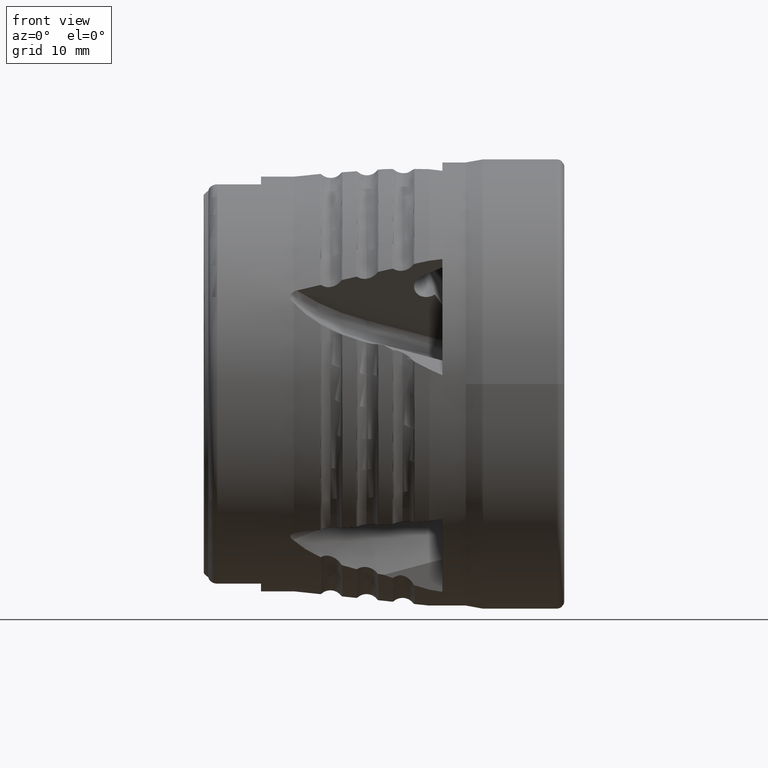
[diagram: clean part render]
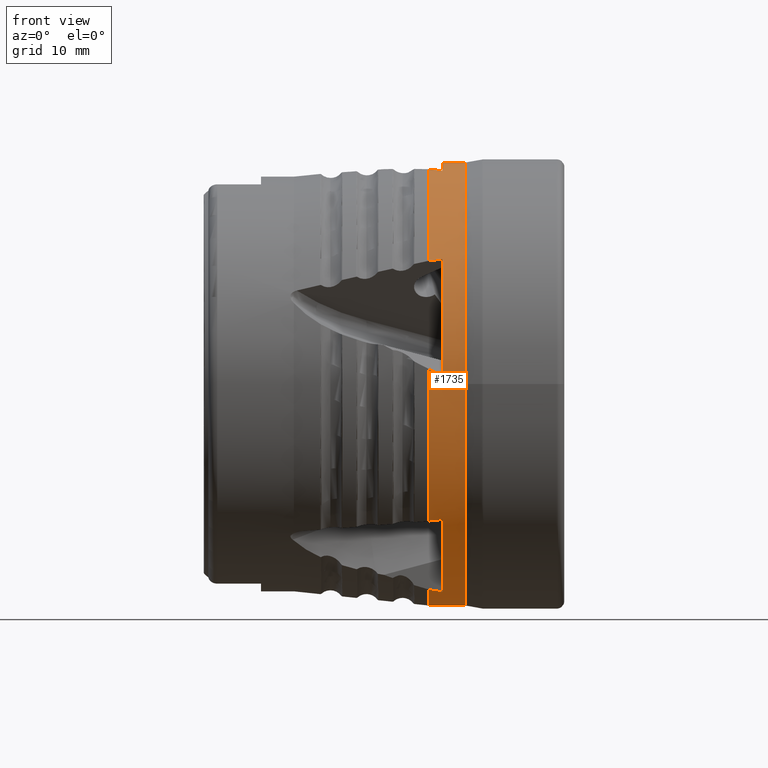
[diagram: same view with one face highlighted and labeled with its STEP entity id]
A machine part, front view. The second image highlights one B-rep face of the part: STEP entity #1735.
In plain terms, the highlighted cylindrical surface (partial cylindrical patch) has radius 24.575 mm, axis along (1, -0, -0).
Its self-contained STEP definition (entity closure, byte-faithful):
#640 = DIRECTION ( 'NONE',  ( 1.000000000000000000, -0.0000000000000000000, -0.0000000000000000000 ) ) ;
#641 = CARTESIAN_POINT ( 'NONE',  ( 0.0000000000000000000, 0.0000000000000000000, 0.0000000000000000000 ) ) ;
#642 = DIRECTION ( 'NONE',  ( 0.0000000000000000000, 0.0000000000000000000, -1.000000000000000000 ) ) ;
#1029 = CARTESIAN_POINT ( 'NONE',  ( -13.24999999999999800, 0.0000000000000000000, 0.0000000000000000000 ) ) ;
#1036 = DIRECTION ( 'NONE',  ( 1.000000000000000000, -0.0000000000000000000, -0.0000000000000000000 ) ) ;
#1037 = DIRECTION ( 'NONE',  ( 0.0000000000000000000, 0.0000000000000000000, -1.000000000000000000 ) ) ;
#1047 = CARTESIAN_POINT ( 'NONE',  ( 0.0000000000000000000, 0.0000000000000000000, -24.57499999999999900 ) ) ;
#1048 = DIRECTION ( 'NONE',  ( 1.000000000000000000, -0.0000000000000000000, -0.0000000000000000000 ) ) ;
#1049 = CARTESIAN_POINT ( 'NONE',  ( 0.0000000000000000000, 3.009569508904620300E-015, 24.57499999999999900 ) ) ;
#1050 = DIRECTION ( 'NONE',  ( 1.000000000000000000, -0.0000000000000000000, -0.0000000000000000000 ) ) ;
#1735 = ADVANCED_FACE ( 'NONE', ( #8166 ), #8165, .T. ) ;
#1851 =( BOUNDED_CURVE ( )  B_SPLINE_CURVE ( 3, ( #3162, #3172, #3173, #3174 ),
 .UNSPECIFIED., .F., .T. ) 
 B_SPLINE_CURVE_WITH_KNOTS ( ( 4, 4 ),
 ( 4.187632533671864700, 4.215138769280052600 ),
 .UNSPECIFIED. ) 
 CURVE ( )  GEOMETRIC_REPRESENTATION_ITEM ( )  RATIONAL_B_SPLINE_CURVE ( ( 1.000000000000000000, 0.9999369515773565100, 0.9999369515773565100, 1.000000000000000000 ) ) 
 REPRESENTATION_ITEM ( '' )  );
#1852 =( BOUNDED_CURVE ( )  B_SPLINE_CURVE ( 3, ( #3170, #3179, #3180, #3181 ),
 .UNSPECIFIED., .F., .F. ) 
 B_SPLINE_CURVE_WITH_KNOTS ( ( 4, 4 ),
 ( 4.187632533671864700, 4.215138769280052600 ),
 .UNSPECIFIED. ) 
 CURVE ( )  GEOMETRIC_REPRESENTATION_ITEM ( )  RATIONAL_B_SPLINE_CURVE ( ( 1.000000000000000000, 0.9999369515773565100, 0.9999369515773565100, 1.000000000000000000 ) ) 
 REPRESENTATION_ITEM ( '' )  );
#1853 =( BOUNDED_CURVE ( )  B_SPLINE_CURVE ( 3, ( #3182, #3186, #3187, #3188 ),
 .UNSPECIFIED., .F., .F. ) 
 B_SPLINE_CURVE_WITH_KNOTS ( ( 4, 4 ),
 ( 4.187632533671864700, 4.215138769280052600 ),
 .UNSPECIFIED. ) 
 CURVE ( )  GEOMETRIC_REPRESENTATION_ITEM ( )  RATIONAL_B_SPLINE_CURVE ( ( 1.000000000000000000, 0.9999369515773565100, 0.9999369515773565100, 1.000000000000000000 ) ) 
 REPRESENTATION_ITEM ( '' )  );
#1866 =( BOUNDED_CURVE ( )  B_SPLINE_CURVE ( 3, ( #3647, #3657, #3658, #3659 ),
 .UNSPECIFIED., .F., .T. ) 
 B_SPLINE_CURVE_WITH_KNOTS ( ( 4, 4 ),
 ( 1.914229563437308300, 1.923213844493647500 ),
 .UNSPECIFIED. ) 
 CURVE ( )  GEOMETRIC_REPRESENTATION_ITEM ( )  RATIONAL_B_SPLINE_CURVE ( ( 1.000000000000000000, 0.9999932735691362500, 0.9999932735691362500, 1.000000000000000000 ) ) 
 REPRESENTATION_ITEM ( '' )  );
#1871 =( BOUNDED_CURVE ( )  B_SPLINE_CURVE ( 3, ( #3751, #3761, #3762, #3763 ),
 .UNSPECIFIED., .F., .T. ) 
 B_SPLINE_CURVE_WITH_KNOTS ( ( 4, 4 ),
 ( 1.914229563437308300, 1.923213844493649100 ),
 .UNSPECIFIED. ) 
 CURVE ( )  GEOMETRIC_REPRESENTATION_ITEM ( )  RATIONAL_B_SPLINE_CURVE ( ( 1.000000000000000000, 0.9999932735691362500, 0.9999932735691362500, 1.000000000000000000 ) ) 
 REPRESENTATION_ITEM ( '' )  );
#1944 = AXIS2_PLACEMENT_3D ( 'NONE', #641, #640, #642 ) ;
#2036 = AXIS2_PLACEMENT_3D ( 'NONE', #1029, #1036, #1037 ) ;
#2146 = AXIS2_PLACEMENT_3D ( 'NONE', #5599, #5601, #5602 ) ;
#2200 = AXIS2_PLACEMENT_3D ( 'NONE', #3175, #3176, #3177 ) ;
#2201 = AXIS2_PLACEMENT_3D ( 'NONE', #3178, #3183, #3184 ) ;
#2203 = AXIS2_PLACEMENT_3D ( 'NONE', #3185, #3190, #3191 ) ;
#2204 = AXIS2_PLACEMENT_3D ( 'NONE', #3171, #3193, #3194 ) ;
#2206 = AXIS2_PLACEMENT_3D ( 'NONE', #3209, #3218, #3219 ) ;
#2210 = AXIS2_PLACEMENT_3D ( 'NONE', #3249, #3258, #3259 ) ;
#2352 = EDGE_CURVE ( 'NONE', #12111, #11997, #8302, .T. ) ;
#2355 = EDGE_CURVE ( 'NONE', #11997, #11940, #8301, .T. ) ;
#2356 = EDGE_CURVE ( 'NONE', #12002, #11519, #8304, .T. ) ;
#2673 = EDGE_CURVE ( 'NONE', #11519, #11520, #9944, .T. ) ;
#3162 = CARTESIAN_POINT ( 'NONE',  ( -13.24999999999999800, -9.142454703750031400, -22.81109701417010500 ) ) ;
#3170 = CARTESIAN_POINT ( 'NONE',  ( -13.24999999999999500, -24.51981633292933100, 1.645974483220622500 ) ) ;
#3171 = CARTESIAN_POINT ( 'NONE',  ( -11.77314234496912000, -2.256532460468214100E-015, 0.0000000000000000000 ) ) ;
#3172 = CARTESIAN_POINT ( 'NONE',  ( -12.76152579702873700, -8.933298973796633300, -22.89492449453811300 ) ) ;
#3173 = CARTESIAN_POINT ( 'NONE',  ( -12.26920887221289800, -8.723010171382972200, -22.97586759440841700 ) ) ;
#3174 = CARTESIAN_POINT ( 'NONE',  ( -11.77314234496911800, -8.511628071640904700, -23.05391100377666200 ) ) ;
#3175 = CARTESIAN_POINT ( 'NONE',  ( -9.178961462333511200, -1.936995458372529200E-015, 0.0000000000000000000 ) ) ;
#3176 = DIRECTION ( 'NONE',  ( 1.000000000000000000, 1.231745265854573400E-016, -0.0000000000000000000 ) ) ;
#3177 = DIRECTION ( 'NONE',  ( -1.411779024192722100E-016, 1.000000000000000000, 0.0000000000000000000 ) ) ;
#3178 = CARTESIAN_POINT ( 'NONE',  ( -11.77314234496912000, -2.256532460468214100E-015, 0.0000000000000000000 ) ) ;
#3179 = CARTESIAN_POINT ( 'NONE',  ( -12.76152579702874100, -24.53490832935143500, 1.421151447298632600 ) ) ;
#3180 = CARTESIAN_POINT ( 'NONE',  ( -12.26920887221290200, -24.54690697825963500, 1.196142118021905600 ) ) ;
#3181 = CARTESIAN_POINT ( 'NONE',  ( -11.77314234496911800, -24.55581001016624000, 0.9709890548403096200 ) ) ;
#3182 = CARTESIAN_POINT ( 'NONE',  ( -13.24999999999999800, -6.011625187904955100, 23.82836518941546400 ) ) ;
#3183 = DIRECTION ( 'NONE',  ( 1.000000000000000000, 1.231745265854573400E-016, -0.0000000000000000000 ) ) ;
#3184 = DIRECTION ( 'NONE',  ( -1.411779024192722100E-016, 1.000000000000000000, 0.0000000000000000000 ) ) ;
#3185 = CARTESIAN_POINT ( 'NONE',  ( -11.77314234496912000, -2.256532460468214100E-015, 0.0000000000000000000 ) ) ;
#3186 = CARTESIAN_POINT ( 'NONE',  ( -12.76152579702875800, -6.230108284605307700, 23.77324439212976900 ) ) ;
#3187 = CARTESIAN_POINT ( 'NONE',  ( -12.26920887221291800, -6.447812659863315000, 23.71512407872123200 ) ) ;
#3188 = CARTESIAN_POINT ( 'NONE',  ( -11.77314234496911800, -6.664697135926597400, 23.65401524237210400 ) ) ;
#3190 = DIRECTION ( 'NONE',  ( 1.000000000000000000, 1.231745265854573400E-016, -0.0000000000000000000 ) ) ;
#3191 = DIRECTION ( 'NONE',  ( -1.411779024192722100E-016, 1.000000000000000000, 0.0000000000000000000 ) ) ;
#3193 = DIRECTION ( 'NONE',  ( 1.000000000000000000, 1.231745265854573400E-016, -0.0000000000000000000 ) ) ;
#3194 = DIRECTION ( 'NONE',  ( -1.411779024192722100E-016, 1.000000000000000000, 0.0000000000000000000 ) ) ;
#3209 = CARTESIAN_POINT ( 'NONE',  ( -13.24999999999999800, 0.0000000000000000000, 0.0000000000000000000 ) ) ;
#3218 = DIRECTION ( 'NONE',  ( 1.000000000000000000, -0.0000000000000000000, -0.0000000000000000000 ) ) ;
#3219 = DIRECTION ( 'NONE',  ( 0.0000000000000000000, 0.0000000000000000000, -1.000000000000000000 ) ) ;
#3249 = CARTESIAN_POINT ( 'NONE',  ( -13.24999999999999800, 0.0000000000000000000, 0.0000000000000000000 ) ) ;
#3258 = DIRECTION ( 'NONE',  ( 1.000000000000000000, -0.0000000000000000000, -0.0000000000000000000 ) ) ;
#3259 = DIRECTION ( 'NONE',  ( 0.0000000000000000000, 0.0000000000000000000, -1.000000000000000000 ) ) ;
#3647 = CARTESIAN_POINT ( 'NONE',  ( -11.77314234496911600, -19.45027739851121900, -15.02056370849521900 ) ) ;
#3657 = CARTESIAN_POINT ( 'NONE',  ( -12.26622861211531500, -19.40529425856224300, -15.07881282399073400 ) ) ;
#3658 = CARTESIAN_POINT ( 'NONE',  ( -12.75851780847474100, -19.36004991014480900, -15.13685928186683300 ) ) ;
#3659 = CARTESIAN_POINT ( 'NONE',  ( -13.24999999999999100, -19.31454526625803300, -15.19470191078716500 ) ) ;
#3751 = CARTESIAN_POINT ( 'NONE',  ( -11.77314234496911600, -20.29587125483774900, 13.85670361258590000 ) ) ;
#3761 = CARTESIAN_POINT ( 'NONE',  ( -12.26622861211542800, -20.33736890099359900, 13.79592213761856500 ) ) ;
#3762 = CARTESIAN_POINT ( 'NONE',  ( -12.75851780847493300, -20.37859309044412000, 13.73495486328364000 ) ) ;
#3763 = CARTESIAN_POINT ( 'NONE',  ( -13.25000000000002000, -20.41954299131434800, 13.67380301985761000 ) ) ;
#4382 = EDGE_CURVE ( 'NONE', #12111, #12190, #1851, .T. ) ;
#4383 = EDGE_CURVE ( 'NONE', #11520, #11940, #10209, .T. ) ;
#4384 = EDGE_CURVE ( 'NONE', #12189, #12159, #1852, .T. ) ;
#4385 = EDGE_CURVE ( 'NONE', #11599, #12190, #10210, .T. ) ;
#4386 = EDGE_CURVE ( 'NONE', #12123, #12160, #1853, .T. ) ;
#4387 = EDGE_CURVE ( 'NONE', #12002, #12160, #10211, .T. ) ;
#4388 = EDGE_CURVE ( 'NONE', #11859, #12159, #10212, .T. ) ;
#4394 = EDGE_CURVE ( 'NONE', #12189, #11738, #10214, .T. ) ;
#4404 = EDGE_CURVE ( 'NONE', #12123, #11747, #10218, .T. ) ;
#4501 = EDGE_CURVE ( 'NONE', #11599, #11738, #1866, .T. ) ;
#4528 = EDGE_CURVE ( 'NONE', #11859, #11747, #1871, .T. ) ;
#5599 = CARTESIAN_POINT ( 'NONE',  ( -9.178961462333511200, -1.936995458372529200E-015, 0.0000000000000000000 ) ) ;
#5601 = DIRECTION ( 'NONE',  ( 1.000000000000000000, 1.231745265854573400E-016, -0.0000000000000000000 ) ) ;
#5602 = DIRECTION ( 'NONE',  ( -1.411779024192722100E-016, 1.000000000000000000, 0.0000000000000000000 ) ) ;
#8165 = CYLINDRICAL_SURFACE ( 'NONE', #1944, 24.57499999999999900 ) ;
#8166 = FACE_OUTER_BOUND ( 'NONE', #12640, .T. ) ;
#8301 = LINE ( 'NONE', #1047, #8303 ) ;
#8302 = CIRCLE ( 'NONE', #2036, 24.57499999999999900 ) ;
#8303 = VECTOR ( 'NONE', #1048, 1000.000000000000000 ) ;
#8304 = LINE ( 'NONE', #1049, #8305 ) ;
#8305 = VECTOR ( 'NONE', #1050, 1000.000000000000000 ) ;
#9210 = CARTESIAN_POINT ( 'NONE',  ( -9.178961462333511200, 3.009569508904620300E-015, 24.57499999999999900 ) ) ;
#9211 = CARTESIAN_POINT ( 'NONE',  ( -9.178961462333507600, -24.57500000000000300, 3.034246077534701100E-015 ) ) ;
#9274 = CARTESIAN_POINT ( 'NONE',  ( -11.77314234496911600, -19.45027739851121900, -15.02056370849521900 ) ) ;
#9394 = CARTESIAN_POINT ( 'NONE',  ( -13.24999999999999100, -19.31454526625803300, -15.19470191078716500 ) ) ;
#9402 = CARTESIAN_POINT ( 'NONE',  ( -13.25000000000002000, -20.41954299131434800, 13.67380301985761000 ) ) ;
#9468 = CARTESIAN_POINT ( 'NONE',  ( -11.77314234496911600, -20.29587125483774900, 13.85670361258590000 ) ) ;
#9494 = CARTESIAN_POINT ( 'NONE',  ( -9.178961462333511200, 3.851859888774471700E-031, -24.57499999999999900 ) ) ;
#9547 = CARTESIAN_POINT ( 'NONE',  ( -13.24999999999999800, 0.0000000000000000000, -24.57499999999999900 ) ) ;
#9552 = CARTESIAN_POINT ( 'NONE',  ( -11.77314234496912000, 3.009569508904620700E-015, 24.57499999999999900 ) ) ;
#9661 = CARTESIAN_POINT ( 'NONE',  ( -13.24999999999999800, -9.142454703750031400, -22.81109701417010500 ) ) ;
#9673 = CARTESIAN_POINT ( 'NONE',  ( -13.24999999999999800, -6.011625187904955100, 23.82836518941546400 ) ) ;
#9944 = CIRCLE ( 'NONE', #2146, 24.57499999999999900 ) ;
#10209 = CIRCLE ( 'NONE', #2200, 24.57499999999999900 ) ;
#10210 = CIRCLE ( 'NONE', #2201, 24.57499999999999900 ) ;
#10211 = CIRCLE ( 'NONE', #2203, 24.57499999999999900 ) ;
#10212 = CIRCLE ( 'NONE', #2204, 24.57499999999999900 ) ;
#10214 = CIRCLE ( 'NONE', #2206, 24.57499999999999900 ) ;
#10218 = CIRCLE ( 'NONE', #2210, 24.57499999999999900 ) ;
#10714 = CARTESIAN_POINT ( 'NONE',  ( -11.77314234496911800, -24.55581001016624000, 0.9709890548403096200 ) ) ;
#10715 = CARTESIAN_POINT ( 'NONE',  ( -11.77314234496911800, -6.664697135926597400, 23.65401524237210400 ) ) ;
#10742 = CARTESIAN_POINT ( 'NONE',  ( -13.24999999999999500, -24.51981633292933100, 1.645974483220622500 ) ) ;
#10743 = CARTESIAN_POINT ( 'NONE',  ( -11.77314234496911800, -8.511628071640904700, -23.05391100377666200 ) ) ;
#11519 = VERTEX_POINT ( 'NONE', #9210 ) ;
#11520 = VERTEX_POINT ( 'NONE', #9211 ) ;
#11599 = VERTEX_POINT ( 'NONE', #9274 ) ;
#11738 = VERTEX_POINT ( 'NONE', #9394 ) ;
#11747 = VERTEX_POINT ( 'NONE', #9402 ) ;
#11859 = VERTEX_POINT ( 'NONE', #9468 ) ;
#11940 = VERTEX_POINT ( 'NONE', #9494 ) ;
#11997 = VERTEX_POINT ( 'NONE', #9547 ) ;
#12002 = VERTEX_POINT ( 'NONE', #9552 ) ;
#12111 = VERTEX_POINT ( 'NONE', #9661 ) ;
#12123 = VERTEX_POINT ( 'NONE', #9673 ) ;
#12159 = VERTEX_POINT ( 'NONE', #10714 ) ;
#12160 = VERTEX_POINT ( 'NONE', #10715 ) ;
#12189 = VERTEX_POINT ( 'NONE', #10742 ) ;
#12190 = VERTEX_POINT ( 'NONE', #10743 ) ;
#12640 = EDGE_LOOP ( 'NONE', ( #12898, #13049, #12887, #12859, #12974, #12796, #12810, #12839, #12904, #12973, #12955, #12966, #13064, #12779, #13059 ) ) ;
#12779 = ORIENTED_EDGE ( 'NONE', *, *, #4383, .F. ) ;
#12796 = ORIENTED_EDGE ( 'NONE', *, *, #4388, .T. ) ;
#12810 = ORIENTED_EDGE ( 'NONE', *, *, #4384, .F. ) ;
#12839 = ORIENTED_EDGE ( 'NONE', *, *, #4394, .T. ) ;
#12859 = ORIENTED_EDGE ( 'NONE', *, *, #4404, .T. ) ;
#12887 = ORIENTED_EDGE ( 'NONE', *, *, #4386, .F. ) ;
#12898 = ORIENTED_EDGE ( 'NONE', *, *, #2356, .F. ) ;
#12904 = ORIENTED_EDGE ( 'NONE', *, *, #4501, .F. ) ;
#12955 = ORIENTED_EDGE ( 'NONE', *, *, #4382, .F. ) ;
#12966 = ORIENTED_EDGE ( 'NONE', *, *, #2352, .T. ) ;
#12973 = ORIENTED_EDGE ( 'NONE', *, *, #4385, .T. ) ;
#12974 = ORIENTED_EDGE ( 'NONE', *, *, #4528, .F. ) ;
#13049 = ORIENTED_EDGE ( 'NONE', *, *, #4387, .T. ) ;
#13059 = ORIENTED_EDGE ( 'NONE', *, *, #2673, .F. ) ;
#13064 = ORIENTED_EDGE ( 'NONE', *, *, #2355, .T. ) ;